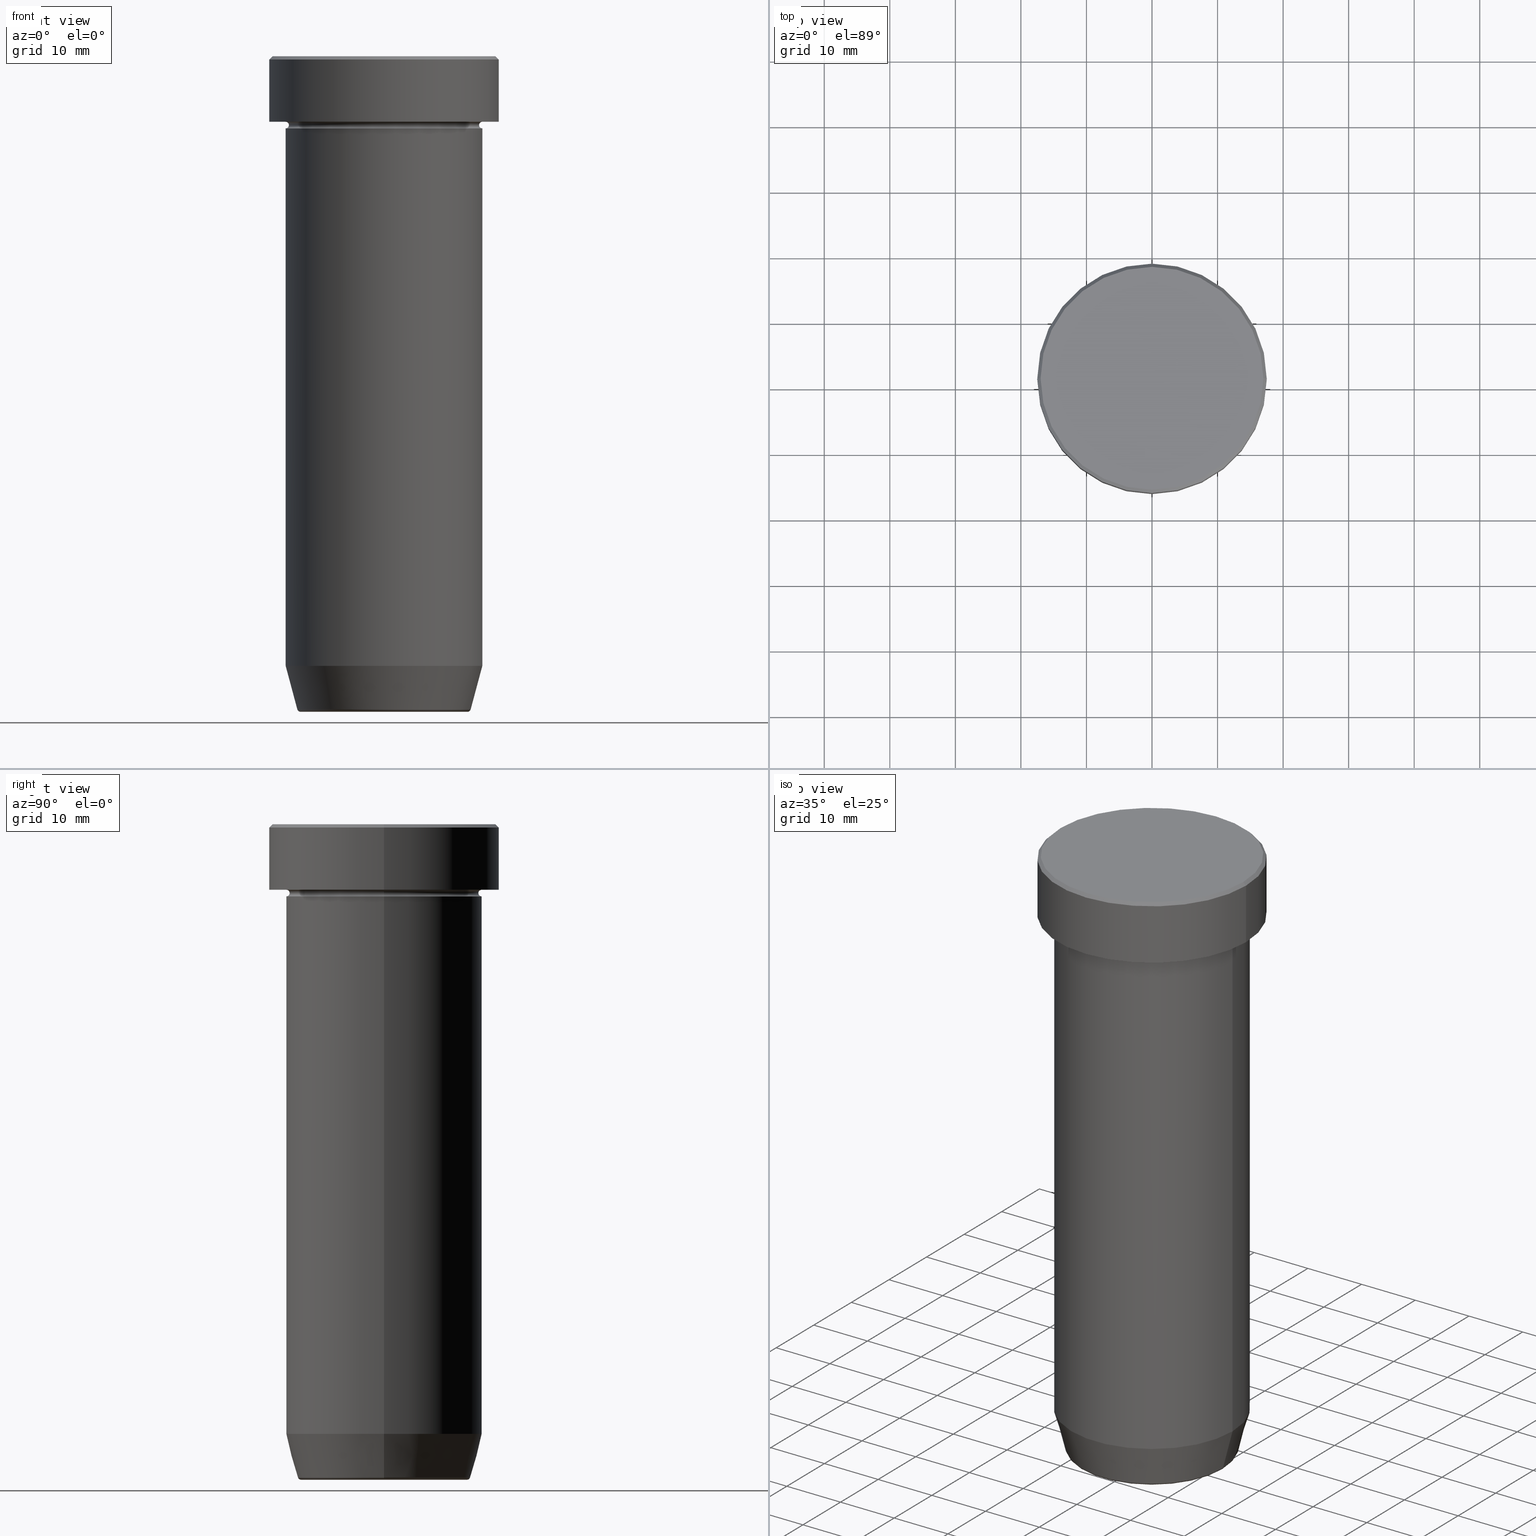
[diagram: canonical four-view strip — front | top / right | iso, engineering-drawing reading convention]
A machine part, canonical four-view strip (front | top / right | iso — engineering-drawing reading convention). The complete STEP part file that produces these views, byte-faithful:
ISO-10303-21;
HEADER;
FILE_DESCRIPTION (( 'STEP AP203' ),
    '1' );
FILE_NAME ('f896.STEP',
    '2024-01-02T17:39:29',
    ( '' ),
    ( '' ),
    'SwSTEP 2.0',
    'SolidWorks 2019',
    '' );
FILE_SCHEMA (( 'CONFIG_CONTROL_DESIGN' ));
ENDSEC;

DATA;
#1 = CIRCLE ( 'NONE', #545, 17.50000000000000000 ) ;
#2 =( GEOMETRIC_REPRESENTATION_CONTEXT ( 3 ) GLOBAL_UNCERTAINTY_ASSIGNED_CONTEXT ( ( #20 ) ) GLOBAL_UNIT_ASSIGNED_CONTEXT ( ( #550, #109, #294 ) ) REPRESENTATION_CONTEXT ( 'NONE', 'WORKASPACE' ) );
#3 = CARTESIAN_POINT ( 'NONE',  ( 17.50000000000000000, 0.000000000000000000, -0.5000000000000073275 ) ) ;
#4 = ADVANCED_FACE ( 'NONE', ( #13 ), #160, .F. ) ;
#5 = DIRECTION ( 'NONE',  ( 0.000000000000000000, 0.000000000000000000, -1.000000000000000000 ) ) ;
#6 = DIRECTION ( 'NONE',  ( -0.000000000000000000, -0.000000000000000000, 1.000000000000000000 ) ) ;
#7 = LINE ( 'NONE', #370, #23 ) ;
#8 = ORIENTED_EDGE ( 'NONE', *, *, #476, .F. ) ;
#9 = DATE_AND_TIME ( #518, #92 ) ;
#10 = AXIS2_PLACEMENT_3D ( 'NONE', #594, #33, #407 ) ;
#11 = SECURITY_CLASSIFICATION ( '', '', #529 ) ;
#12 = EDGE_CURVE ( 'NONE', #183, #129, #221, .T. ) ;
#13 = FACE_OUTER_BOUND ( 'NONE', #201, .T. ) ;
#14 = MECHANICAL_CONTEXT ( 'NONE', #289, 'mechanical' ) ;
#15 = DIRECTION ( 'NONE',  ( -0.000000000000000000, -0.000000000000000000, 1.000000000000000000 ) ) ;
#16 = CARTESIAN_POINT ( 'NONE',  ( 0.000000000000000000, 0.000000000000000000, -0.5000000000000073275 ) ) ;
#17 = EDGE_CURVE ( 'NONE', #212, #226, #401, .T. ) ;
#18 = EDGE_LOOP ( 'NONE', ( #540, #107, #8, #426 ) ) ;
#19 = PERSON_AND_ORGANIZATION ( #473, #103 ) ;
#20 = UNCERTAINTY_MEASURE_WITH_UNIT (LENGTH_MEASURE( 1.000000000000000082E-05 ), #550, 'distance_accuracy_value', 'NONE');
#21 = DIRECTION ( 'NONE',  ( -0.000000000000000000, -0.000000000000000000, 1.000000000000000000 ) ) ;
#22 = PLANE ( 'NONE',  #280 ) ;
#23 = VECTOR ( 'NONE', #371, 1000.000000000000000 ) ;
#24 = ORIENTED_EDGE ( 'NONE', *, *, #374, .F. ) ;
#25 = DIRECTION ( 'NONE',  ( -0.000000000000000000, -0.000000000000000000, 1.000000000000000000 ) ) ;
#26 = DIRECTION ( 'NONE',  ( -1.000000000000000000, 0.000000000000000000, 0.000000000000000000 ) ) ;
#27 = CARTESIAN_POINT ( 'NONE',  ( 15.00000000000000000, 0.000000000000000000, -11.00000000000000000 ) ) ;
#28 = DIRECTION ( 'NONE',  ( -1.000000000000000000, 1.224646799147349509E-16, 0.000000000000000000 ) ) ;
#29 = ORIENTED_EDGE ( 'NONE', *, *, #549, .T. ) ;
#30 = EDGE_CURVE ( 'NONE', #556, #427, #138, .T. ) ;
#31 = DIRECTION ( 'NONE',  ( -0.000000000000000000, -0.000000000000000000, 1.000000000000000000 ) ) ;
#32 = PRODUCT_DEFINITION ( 'NEZN�M�', '', #203, #567 ) ;
#33 = DIRECTION ( 'NONE',  ( -1.224646799147353207E-16, 1.000000000000000000, 0.000000000000000000 ) ) ;
#34 = ORIENTED_EDGE ( 'NONE', *, *, #563, .F. ) ;
#35 = DIRECTION ( 'NONE',  ( 0.000000000000000000, 0.000000000000000000, -1.000000000000000000 ) ) ;
#36 = DIRECTION ( 'NONE',  ( -0.000000000000000000, -0.000000000000000000, 1.000000000000000000 ) ) ;
#37 = AXIS2_PLACEMENT_3D ( 'NONE', #533, #165, #487 ) ;
#38 = DIRECTION ( 'NONE',  ( 1.000000000000000000, 0.000000000000000000, 0.000000000000000000 ) ) ;
#39 = EDGE_CURVE ( 'NONE', #466, #514, #287, .T. ) ;
#40 = APPROVAL_PERSON_ORGANIZATION ( #53, #439, #343 ) ;
#41 = DIRECTION ( 'NONE',  ( 0.000000000000000000, 0.000000000000000000, -1.000000000000000000 ) ) ;
#42 = DIRECTION ( 'NONE',  ( 0.000000000000000000, 0.000000000000000000, -1.000000000000000000 ) ) ;
#43 = CARTESIAN_POINT ( 'NONE',  ( -13.22365507213718594, 1.728200442216588189E-15, -99.62940952255127058 ) ) ;
#44 = DIRECTION ( 'NONE',  ( 0.2588190451025210725, 0.000000000000000000, 0.9659258262890680902 ) ) ;
#45 = CLOSED_SHELL ( 'NONE', ( #525, #272, #378, #4, #387, #383, #252, #305 ) ) ;
#46 = AXIS2_PLACEMENT_3D ( 'NONE', #418, #42, #422 ) ;
#47 = APPROVAL_PERSON_ORGANIZATION ( #202, #512, #213 ) ;
#48 = ORIENTED_EDGE ( 'NONE', *, *, #54, .T. ) ;
#49 = EDGE_LOOP ( 'NONE', ( #517, #571, #155, #167 ) ) ;
#50 = DIRECTION ( 'NONE',  ( 1.000000000000000000, 0.000000000000000000, 0.000000000000000000 ) ) ;
#51 = EDGE_LOOP ( 'NONE', ( #157, #561, #100, #198 ) ) ;
#52 = ORIENTED_EDGE ( 'NONE', *, *, #329, .F. ) ;
#53 = PERSON_AND_ORGANIZATION ( #473, #103 ) ;
#54 = EDGE_CURVE ( 'NONE', #556, #384, #270, .T. ) ;
#55 = ORIENTED_EDGE ( 'NONE', *, *, #497, .T. ) ;
#56 = SHAPE_DEFINITION_REPRESENTATION ( #140, #83 ) ;
#57 = EDGE_CURVE ( 'NONE', #171, #147, #67, .T. ) ;
#58 = VECTOR ( 'NONE', #491, 1000.000000000000114 ) ;
#59 = CONICAL_SURFACE ( 'NONE', #404, 13.12435565298213547, 0.2617993877991497964 ) ;
#60 = EDGE_LOOP ( 'NONE', ( #542, #354 ) ) ;
#61 = VERTEX_POINT ( 'NONE', #268 ) ;
#62 = APPROVAL_DATE_TIME ( #515, #490 ) ;
#63 = DIRECTION ( 'NONE',  ( -0.000000000000000000, -0.000000000000000000, 1.000000000000000000 ) ) ;
#64 = ADVANCED_FACE ( 'NONE', ( #353 ), #278, .F. ) ;
#65 = COORDINATED_UNIVERSAL_TIME_OFFSET ( 1, 0, .AHEAD. ) ;
#66 = DIRECTION ( 'NONE',  ( 1.000000000000000000, 0.000000000000000000, 0.000000000000000000 ) ) ;
#67 = CIRCLE ( 'NONE', #409, 0.5000000000000004441 ) ;
#68 = DIRECTION ( 'NONE',  ( -0.000000000000000000, -0.000000000000000000, 1.000000000000000000 ) ) ;
#69 = ORIENTED_EDGE ( 'NONE', *, *, #329, .T. ) ;
#70 = LINE ( 'NONE', #112, #333 ) ;
#71 = CIRCLE ( 'NONE', #413, 17.00000000000000000 ) ;
#72 = DIRECTION ( 'NONE',  ( 1.000000000000000000, 0.000000000000000000, 0.000000000000000000 ) ) ;
#73 = ORIENTED_EDGE ( 'NONE', *, *, #300, .T. ) ;
#74 = DIRECTION ( 'NONE',  ( -0.000000000000000000, -0.000000000000000000, 1.000000000000000000 ) ) ;
#75 = DIRECTION ( 'NONE',  ( -0.000000000000000000, -0.000000000000000000, 1.000000000000000000 ) ) ;
#76 = EDGE_LOOP ( 'NONE', ( #302, #435, #388, #532 ) ) ;
#77 = EDGE_CURVE ( 'NONE', #129, #183, #87, .T. ) ;
#78 = CARTESIAN_POINT ( 'NONE',  ( 0.000000000000000000, 0.000000000000000000, -99.62940952255127058 ) ) ;
#79 = AXIS2_PLACEMENT_3D ( 'NONE', #170, #31, #400 ) ;
#80 = DIRECTION ( 'NONE',  ( 1.000000000000000000, 0.000000000000000000, 0.000000000000000000 ) ) ;
#81 = CIRCLE ( 'NONE', #495, 15.00000000000000000 ) ;
#82 = AXIS2_PLACEMENT_3D ( 'NONE', #499, #276, #396 ) ;
#83 = ADVANCED_BREP_SHAPE_REPRESENTATION ( 'f896', ( #538, #144, #513 ), #2 ) ;
#84 = EDGE_CURVE ( 'NONE', #360, #226, #159, .T. ) ;
#85 = CARTESIAN_POINT ( 'NONE',  ( 0.000000000000000000, 0.000000000000000000, -99.50000000000000000 ) ) ;
#86 = FACE_OUTER_BOUND ( 'NONE', #261, .T. ) ;
#87 = CIRCLE ( 'NONE', #416, 15.00000000000000000 ) ;
#88 = CARTESIAN_POINT ( 'NONE',  ( 0.000000000000000000, 17.50000000000000000, -9.999999999999998224 ) ) ;
#89 = PRODUCT ( 'f896', 'f896', '', ( #14 ) ) ;
#90 = CARTESIAN_POINT ( 'NONE',  ( 15.00000000000000000, 1.836970198721029589E-15, -9.999999999999998224 ) ) ;
#91 = TOROIDAL_SURFACE ( 'NONE', #350, 15.00000000000000000, 0.5000000000000000000 ) ;
#92 = LOCAL_TIME ( 18, 39, 29.00000000000000000, #65 ) ;
#93 = DIRECTION ( 'NONE',  ( -0.000000000000000000, -0.000000000000000000, 1.000000000000000000 ) ) ;
#94 = DIRECTION ( 'NONE',  ( -0.000000000000000000, -0.000000000000000000, 1.000000000000000000 ) ) ;
#95 = EDGE_CURVE ( 'NONE', #61, #298, #1, .T. ) ;
#96 = DIRECTION ( 'NONE',  ( 0.000000000000000000, 0.000000000000000000, -1.000000000000000000 ) ) ;
#97 = CC_DESIGN_DATE_AND_TIME_ASSIGNMENT ( #9, #106, ( #11 ) ) ;
#98 = DIRECTION ( 'NONE',  ( 1.000000000000000000, 0.000000000000000000, 0.000000000000000000 ) ) ;
#99 = VERTEX_POINT ( 'NONE', #568 ) ;
#100 = ORIENTED_EDGE ( 'NONE', *, *, #465, .T. ) ;
#101 = DIRECTION ( 'NONE',  ( 1.224646799147353207E-16, 1.000000000000000000, 0.000000000000000000 ) ) ;
#102 = CONICAL_SURFACE ( 'NONE', #163, 17.00000000000000000, 0.7853981633974415066 ) ;
#103 = ORGANIZATION ( 'NEUR�EN�', 'NEUR�EN�', '' ) ;
#104 = ORIENTED_EDGE ( 'NONE', *, *, #17, .T. ) ;
#105 = ORIENTED_EDGE ( 'NONE', *, *, #485, .T. ) ;
#106 = DATE_TIME_ROLE ( 'classification_date' ) ;
#107 = ORIENTED_EDGE ( 'NONE', *, *, #180, .T. ) ;
#108 = AXIS2_PLACEMENT_3D ( 'NONE', #493, #527, #80 ) ;
#109 =( NAMED_UNIT ( * ) PLANE_ANGLE_UNIT ( ) SI_UNIT ( $, .RADIAN. ) );
#110 = CIRCLE ( 'NONE', #450, 15.00000000000000000 ) ;
#111 = CIRCLE ( 'NONE', #82, 0.5000000000000004441 ) ;
#112 = CARTESIAN_POINT ( 'NONE',  ( -15.00000000000000000, 1.836970198721029589E-15, 0.000000000000000000 ) ) ;
#113 = DIRECTION ( 'NONE',  ( 0.000000000000000000, 0.000000000000000000, -1.000000000000000000 ) ) ;
#114 = PERSON_AND_ORGANIZATION ( #473, #103 ) ;
#115 = EDGE_CURVE ( 'NONE', #226, #212, #440, .T. ) ;
#116 = CARTESIAN_POINT ( 'NONE',  ( 15.00000000000000000, 0.000000000000000000, -93.00000000000000000 ) ) ;
#117 = ORIENTED_EDGE ( 'NONE', *, *, #197, .F. ) ;
#118 = PERSON_AND_ORGANIZATION_ROLE ( 'design_supplier' ) ;
#119 = CARTESIAN_POINT ( 'NONE',  ( 0.000000000000000000, 0.000000000000000000, -0.5000000000000073275 ) ) ;
#120 = AXIS2_PLACEMENT_3D ( 'NONE', #78, #130, #26 ) ;
#121 = CARTESIAN_POINT ( 'NONE',  ( -14.49999999999999822, 1.806354028742345802E-15, -10.49999999999999822 ) ) ;
#122 = VERTEX_POINT ( 'NONE', #116 ) ;
#123 = CARTESIAN_POINT ( 'NONE',  ( 0.000000000000000000, 0.000000000000000000, 0.000000000000000000 ) ) ;
#124 = DIRECTION ( 'NONE',  ( 0.000000000000000000, -1.000000000000000000, 0.000000000000000000 ) ) ;
#125 = CC_DESIGN_APPROVAL ( #439, ( #203 ) ) ;
#126 = ADVANCED_FACE ( 'NONE', ( #306 ), #582, .T. ) ;
#127 = EDGE_LOOP ( 'NONE', ( #269, #55, #227, #584 ) ) ;
#128 = LINE ( 'NONE', #317, #58 ) ;
#129 = VERTEX_POINT ( 'NONE', #357 ) ;
#130 = DIRECTION ( 'NONE',  ( -0.000000000000000000, -0.000000000000000000, 1.000000000000000000 ) ) ;
#131 = ORIENTED_EDGE ( 'NONE', *, *, #39, .T. ) ;
#132 = TOROIDAL_SURFACE ( 'NONE', #342, 12.74069215899265473, 0.5000000000000000000 ) ;
#133 = AXIS2_PLACEMENT_3D ( 'NONE', #247, #288, #459 ) ;
#134 = CYLINDRICAL_SURFACE ( 'NONE', #431, 15.00000000000000000 ) ;
#135 = EDGE_CURVE ( 'NONE', #447, #61, #178, .T. ) ;
#136 = FACE_BOUND ( 'NONE', #60, .T. ) ;
#137 = DIRECTION ( 'NONE',  ( 1.000000000000000000, 0.000000000000000000, 0.000000000000000000 ) ) ;
#138 = CIRCLE ( 'NONE', #108, 15.00000000000000000 ) ;
#139 = CARTESIAN_POINT ( 'NONE',  ( -15.00000000000000000, 1.836970198721029589E-15, -36.00000000000000000 ) ) ;
#140 = PRODUCT_DEFINITION_SHAPE ( 'NONE', 'NONE',  #32 ) ;
#141 = CARTESIAN_POINT ( 'NONE',  ( 0.000000000000000000, 0.000000000000000000, -11.00000000000000000 ) ) ;
#142 = CIRCLE ( 'NONE', #10, 0.5000000000000004441 ) ;
#143 = TOROIDAL_SURFACE ( 'NONE', #204, 15.00000000000000000, 0.5000000000000000000 ) ;
#144 = MANIFOLD_SOLID_BREP ( 'Zaoblit4', #45 ) ;
#145 = DIRECTION ( 'NONE',  ( -0.000000000000000000, -0.000000000000000000, 1.000000000000000000 ) ) ;
#146 = CARTESIAN_POINT ( 'NONE',  ( 0.000000000000000000, 0.000000000000000000, -10.49999999999999822 ) ) ;
#147 = VERTEX_POINT ( 'NONE', #438 ) ;
#148 = DIRECTION ( 'NONE',  ( 1.000000000000000000, 0.000000000000000000, 0.000000000000000000 ) ) ;
#149 = ORIENTED_EDGE ( 'NONE', *, *, #310, .F. ) ;
#150 = ORIENTED_EDGE ( 'NONE', *, *, #284, .F. ) ;
#151 = DATE_TIME_ROLE ( 'creation_date' ) ;
#152 = CIRCLE ( 'NONE', #457, 0.5000000000000004441 ) ;
#153 = CIRCLE ( 'NONE', #592, 14.49999999999999822 ) ;
#154 = CC_DESIGN_PERSON_AND_ORGANIZATION_ASSIGNMENT ( #558, #475, ( #89 ) ) ;
#155 = ORIENTED_EDGE ( 'NONE', *, *, #77, .F. ) ;
#156 = PERSON_AND_ORGANIZATION ( #473, #103 ) ;
#157 = ORIENTED_EDGE ( 'NONE', *, *, #497, .F. ) ;
#158 = DIRECTION ( 'NONE',  ( 0.000000000000000000, 0.000000000000000000, 1.000000000000000000 ) ) ;
#159 = CIRCLE ( 'NONE', #492, 0.5000000000000004441 ) ;
#160 = PLANE ( 'NONE',  #501 ) ;
#161 = COORDINATED_UNIVERSAL_TIME_OFFSET ( 1, 0, .AHEAD. ) ;
#162 = ADVANCED_FACE ( 'NONE', ( #484 ), #22, .T. ) ;
#163 = AXIS2_PLACEMENT_3D ( 'NONE', #281, #41, #189 ) ;
#164 = AXIS2_PLACEMENT_3D ( 'NONE', #574, #433, #66 ) ;
#165 = DIRECTION ( 'NONE',  ( 0.000000000000000000, 0.000000000000000000, -1.000000000000000000 ) ) ;
#166 = DIRECTION ( 'NONE',  ( 0.000000000000000000, 0.000000000000000000, -1.000000000000000000 ) ) ;
#167 = ORIENTED_EDGE ( 'NONE', *, *, #421, .F. ) ;
#168 = CALENDAR_DATE ( 2024, 2, 1 ) ;
#169 = CARTESIAN_POINT ( 'NONE',  ( -15.00000000000000000, 1.836970198721029589E-15, -93.00000000000000000 ) ) ;
#170 = CARTESIAN_POINT ( 'NONE',  ( 0.000000000000000000, 0.000000000000000000, -9.999999999999998224 ) ) ;
#171 = VERTEX_POINT ( 'NONE', #121 ) ;
#172 = CARTESIAN_POINT ( 'NONE',  ( -12.74069215899265473, 1.589857736427680246E-15, -100.0000000000000000 ) ) ;
#173 = EDGE_CURVE ( 'NONE', #99, #447, #385, .T. ) ;
#174 = CARTESIAN_POINT ( 'NONE',  ( 0.000000000000000000, 0.000000000000000000, -10.49999999999999822 ) ) ;
#175 = ORIENTED_EDGE ( 'NONE', *, *, #448, .T. ) ;
#176 = VECTOR ( 'NONE', #94, 1000.000000000000000 ) ;
#177 = EDGE_CURVE ( 'NONE', #360, #389, #332, .T. ) ;
#178 = LINE ( 'NONE', #179, #504 ) ;
#179 = CARTESIAN_POINT ( 'NONE',  ( -17.50000000000000000, 2.143131898507868248E-15, 0.000000000000000000 ) ) ;
#180 = EDGE_CURVE ( 'NONE', #212, #441, #128, .T. ) ;
#181 = CARTESIAN_POINT ( 'NONE',  ( -17.00000000000000000, 0.000000000000000000, 0.000000000000000000 ) ) ;
#182 = VECTOR ( 'NONE', #260, 1000.000000000000000 ) ;
#183 = VERTEX_POINT ( 'NONE', #90 ) ;
#184 = CARTESIAN_POINT ( 'NONE',  ( 0.000000000000000000, 0.000000000000000000, -10.49999999999999822 ) ) ;
#185 = AXIS2_PLACEMENT_3D ( 'NONE', #119, #5, #50 ) ;
#186 = DIRECTION ( 'NONE',  ( 1.000000000000000000, 0.000000000000000000, 0.000000000000000000 ) ) ;
#187 = CARTESIAN_POINT ( 'NONE',  ( 15.00000000000000000, 0.000000000000000000, -10.49999999999999822 ) ) ;
#188 = DIRECTION ( 'NONE',  ( -0.000000000000000000, -0.000000000000000000, 1.000000000000000000 ) ) ;
#189 = DIRECTION ( 'NONE',  ( -1.000000000000000000, 0.000000000000000000, 0.000000000000000000 ) ) ;
#190 = EDGE_CURVE ( 'NONE', #271, #183, #142, .T. ) ;
#191 = CARTESIAN_POINT ( 'NONE',  ( 0.000000000000000000, 0.000000000000000000, -36.00000000000000000 ) ) ;
#192 = DIRECTION ( 'NONE',  ( -0.7071067811865426878, 0.000000000000000000, -0.7071067811865524577 ) ) ;
#193 = TOROIDAL_SURFACE ( 'NONE', #46, 15.00000000000000000, 0.5000000000000000000 ) ;
#194 = DIRECTION ( 'NONE',  ( -0.000000000000000000, -0.000000000000000000, 1.000000000000000000 ) ) ;
#195 = ORIENTED_EDGE ( 'NONE', *, *, #84, .T. ) ;
#196 = CARTESIAN_POINT ( 'NONE',  ( 0.000000000000000000, 0.000000000000000000, -99.50000000000000000 ) ) ;
#197 = EDGE_CURVE ( 'NONE', #271, #384, #152, .T. ) ;
#198 = ORIENTED_EDGE ( 'NONE', *, *, #39, .F. ) ;
#199 = CARTESIAN_POINT ( 'NONE',  ( 0.000000000000000000, 0.000000000000000000, 0.000000000000000000 ) ) ;
#200 = AXIS2_PLACEMENT_3D ( 'NONE', #320, #75, #274 ) ;
#201 = EDGE_LOOP ( 'NONE', ( #489, #131 ) ) ;
#202 = PERSON_AND_ORGANIZATION ( #473, #103 ) ;
#203 = PRODUCT_DEFINITION_FORMATION_WITH_SPECIFIED_SOURCE ( 'LIBOVOLN�', '', #89, .NOT_KNOWN. ) ;
#204 = AXIS2_PLACEMENT_3D ( 'NONE', #184, #366, #546 ) ;
#205 = ORIENTED_EDGE ( 'NONE', *, *, #344, .T. ) ;
#206 = DIRECTION ( 'NONE',  ( -0.000000000000000000, -0.000000000000000000, 1.000000000000000000 ) ) ;
#207 = ADVANCED_FACE ( 'NONE', ( #86 ), #285, .T. ) ;
#208 = ORIENTED_EDGE ( 'NONE', *, *, #300, .F. ) ;
#209 = LINE ( 'NONE', #217, #551 ) ;
#210 = DIRECTION ( 'NONE',  ( -0.000000000000000000, -0.000000000000000000, 1.000000000000000000 ) ) ;
#211 = CC_DESIGN_DATE_AND_TIME_ASSIGNMENT ( #520, #151, ( #32 ) ) ;
#212 = VERTEX_POINT ( 'NONE', #43 ) ;
#213 = APPROVAL_ROLE ( '' ) ;
#214 = FACE_OUTER_BOUND ( 'NONE', #341, .T. ) ;
#215 = DIRECTION ( 'NONE',  ( 1.000000000000000000, 0.000000000000000000, 0.000000000000000000 ) ) ;
#216 = EDGE_LOOP ( 'NONE', ( #403, #469 ) ) ;
#217 = CARTESIAN_POINT ( 'NONE',  ( 17.50000000000000000, 0.000000000000000000, 0.000000000000000000 ) ) ;
#218 = CARTESIAN_POINT ( 'NONE',  ( 0.000000000000000000, 15.00000000000000000, -36.00000000000000000 ) ) ;
#219 = ORIENTED_EDGE ( 'NONE', *, *, #593, .F. ) ;
#220 = CC_DESIGN_PERSON_AND_ORGANIZATION_ASSIGNMENT ( #19, #255, ( #32 ) ) ;
#221 = CIRCLE ( 'NONE', #79, 15.00000000000000000 ) ;
#222 = DIRECTION ( 'NONE',  ( 1.000000000000000000, 0.000000000000000000, 0.000000000000000000 ) ) ;
#223 = AXIS2_PLACEMENT_3D ( 'NONE', #218, #166, #480 ) ;
#224 = CIRCLE ( 'NONE', #233, 17.50000000000000000 ) ;
#225 = DIRECTION ( 'NONE',  ( -0.000000000000000000, -0.000000000000000000, 1.000000000000000000 ) ) ;
#226 = VERTEX_POINT ( 'NONE', #237 ) ;
#227 = ORIENTED_EDGE ( 'NONE', *, *, #573, .F. ) ;
#228 = CYLINDRICAL_SURFACE ( 'NONE', #164, 15.00000000000000000 ) ;
#229 = LINE ( 'NONE', #181, #522 ) ;
#230 = CARTESIAN_POINT ( 'NONE',  ( -15.00000000000000000, 1.836970198721029589E-15, -36.00000000000000000 ) ) ;
#231 = FACE_OUTER_BOUND ( 'NONE', #536, .T. ) ;
#232 = AXIS2_PLACEMENT_3D ( 'NONE', #405, #392, #579 ) ;
#233 = AXIS2_PLACEMENT_3D ( 'NONE', #375, #468, #599 ) ;
#234 = CARTESIAN_POINT ( 'NONE',  ( -15.00000000000000000, 1.836970198721029589E-15, 0.000000000000000000 ) ) ;
#235 = PLANE ( 'NONE',  #367 ) ;
#236 = DIRECTION ( 'NONE',  ( -0.000000000000000000, -0.000000000000000000, 1.000000000000000000 ) ) ;
#237 = CARTESIAN_POINT ( 'NONE',  ( 13.22365507213718594, 0.000000000000000000, -99.62940952255127058 ) ) ;
#238 = FACE_OUTER_BOUND ( 'NONE', #295, .T. ) ;
#239 = CYLINDRICAL_SURFACE ( 'NONE', #511, 17.50000000000000000 ) ;
#240 = EDGE_CURVE ( 'NONE', #441, #122, #110, .T. ) ;
#241 = VECTOR ( 'NONE', #93, 1000.000000000000000 ) ;
#242 = CARTESIAN_POINT ( 'NONE',  ( -17.00000000000000000, 0.000000000000000000, 0.000000000000000000 ) ) ;
#243 = DIRECTION ( 'NONE',  ( -0.000000000000000000, -0.000000000000000000, 1.000000000000000000 ) ) ;
#244 = ORIENTED_EDGE ( 'NONE', *, *, #319, .F. ) ;
#245 = EDGE_CURVE ( 'NONE', #586, #61, #229, .T. ) ;
#246 = ORIENTED_EDGE ( 'NONE', *, *, #485, .F. ) ;
#247 = CARTESIAN_POINT ( 'NONE',  ( 0.000000000000000000, 0.000000000000000000, -93.00000000000000000 ) ) ;
#248 = ORIENTED_EDGE ( 'NONE', *, *, #17, .F. ) ;
#249 = ORIENTED_EDGE ( 'NONE', *, *, #521, .T. ) ;
#250 = AXIS2_PLACEMENT_3D ( 'NONE', #575, #311, #72 ) ;
#251 = AXIS2_PLACEMENT_3D ( 'NONE', #588, #21, #328 ) ;
#252 = ADVANCED_FACE ( 'NONE', ( #365 ), #235, .F. ) ;
#253 = ORIENTED_EDGE ( 'NONE', *, *, #135, .F. ) ;
#254 = ORIENTED_EDGE ( 'NONE', *, *, #30, .F. ) ;
#255 = PERSON_AND_ORGANIZATION_ROLE ( 'creator' ) ;
#256 = DIRECTION ( 'NONE',  ( 1.000000000000000000, 0.000000000000000000, 0.000000000000000000 ) ) ;
#257 = ORIENTED_EDGE ( 'NONE', *, *, #135, .T. ) ;
#258 = PERSON_AND_ORGANIZATION_ROLE ( 'classification_officer' ) ;
#259 = DIRECTION ( 'NONE',  ( 1.000000000000000000, 0.000000000000000000, 0.000000000000000000 ) ) ;
#260 = DIRECTION ( 'NONE',  ( -0.000000000000000000, -0.000000000000000000, 1.000000000000000000 ) ) ;
#261 = EDGE_LOOP ( 'NONE', ( #52, #29, #48, #316 ) ) ;
#262 = DATE_AND_TIME ( #308, #326 ) ;
#263 = CIRCLE ( 'NONE', #323, 17.00000000000000000 ) ;
#264 = APPROVAL_PERSON_ORGANIZATION ( #394, #490, #572 ) ;
#265 = DIRECTION ( 'NONE',  ( -0.000000000000000000, -0.000000000000000000, 1.000000000000000000 ) ) ;
#266 = DIRECTION ( 'NONE',  ( 0.000000000000000000, 0.000000000000000000, -1.000000000000000000 ) ) ;
#267 = ORIENTED_EDGE ( 'NONE', *, *, #57, .F. ) ;
#268 = CARTESIAN_POINT ( 'NONE',  ( -17.50000000000000000, 2.143131898507868248E-15, -0.5000000000000073275 ) ) ;
#269 = ORIENTED_EDGE ( 'NONE', *, *, #476, .T. ) ;
#270 = LINE ( 'NONE', #578, #182 ) ;
#271 = VERTEX_POINT ( 'NONE', #544 ) ;
#272 = ADVANCED_FACE ( 'NONE', ( #454 ), #463, .T. ) ;
#273 = AXIS2_PLACEMENT_3D ( 'NONE', #595, #101, #425 ) ;
#274 = DIRECTION ( 'NONE',  ( 1.000000000000000000, 0.000000000000000000, 0.000000000000000000 ) ) ;
#275 = ADVANCED_FACE ( 'NONE', ( #231 ), #91, .F. ) ;
#276 = DIRECTION ( 'NONE',  ( -0.000000000000000000, -1.000000000000000000, -0.000000000000000000 ) ) ;
#277 = DIRECTION ( 'NONE',  ( 0.000000000000000000, -0.000000000000000000, 1.000000000000000000 ) ) ;
#278 = TOROIDAL_SURFACE ( 'NONE', #531, 15.00000000000000000, 0.5000000000000000000 ) ;
#279 = ADVANCED_FACE ( 'NONE', ( #589 ), #102, .T. ) ;
#280 = AXIS2_PLACEMENT_3D ( 'NONE', #363, #541, #397 ) ;
#281 = CARTESIAN_POINT ( 'NONE',  ( 0.000000000000000000, 0.000000000000000000, 0.000000000000000000 ) ) ;
#282 = CIRCLE ( 'NONE', #523, 15.00000000000000000 ) ;
#283 = DIRECTION ( 'NONE',  ( 1.000000000000000000, 0.000000000000000000, 0.000000000000000000 ) ) ;
#284 = EDGE_CURVE ( 'NONE', #384, #147, #81, .T. ) ;
#285 = CYLINDRICAL_SURFACE ( 'NONE', #290, 15.00000000000000000 ) ;
#286 = LINE ( 'NONE', #234, #176 ) ;
#287 = CIRCLE ( 'NONE', #200, 15.00000000000000000 ) ;
#288 = DIRECTION ( 'NONE',  ( -0.000000000000000000, -0.000000000000000000, 1.000000000000000000 ) ) ;
#289 = APPLICATION_CONTEXT ( 'configuration controlled 3d designs of mechanical parts and assemblies' ) ;
#290 = AXIS2_PLACEMENT_3D ( 'NONE', #369, #145, #502 ) ;
#291 = AXIS2_PLACEMENT_3D ( 'NONE', #199, #336, #506 ) ;
#292 = FACE_OUTER_BOUND ( 'NONE', #373, .T. ) ;
#293 = EDGE_LOOP ( 'NONE', ( #253, #105, #477, #175 ) ) ;
#294 =( NAMED_UNIT ( * ) SI_UNIT ( $, .STERADIAN. ) SOLID_ANGLE_UNIT ( ) );
#295 = EDGE_LOOP ( 'NONE', ( #244, #379, #307, #576 ) ) ;
#296 = APPROVAL_DATE_TIME ( #262, #512 ) ;
#297 = ADVANCED_FACE ( 'NONE', ( #347 ), #239, .T. ) ;
#298 = VERTEX_POINT ( 'NONE', #3 ) ;
#299 = CIRCLE ( 'NONE', #386, 14.49999999999999822 ) ;
#300 = EDGE_CURVE ( 'NONE', #434, #586, #263, .T. ) ;
#301 = CYLINDRICAL_SURFACE ( 'NONE', #251, 17.50000000000000000 ) ;
#302 = ORIENTED_EDGE ( 'NONE', *, *, #190, .F. ) ;
#303 = PERSON_AND_ORGANIZATION_ROLE ( 'creator' ) ;
#304 = DIRECTION ( 'NONE',  ( 1.000000000000000000, 0.000000000000000000, 0.000000000000000000 ) ) ;
#305 = ADVANCED_FACE ( 'NONE', ( #423 ), #132, .T. ) ;
#306 = FACE_OUTER_BOUND ( 'NONE', #381, .T. ) ;
#307 = ORIENTED_EDGE ( 'NONE', *, *, #115, .F. ) ;
#308 = CALENDAR_DATE ( 2024, 2, 1 ) ;
#309 = FACE_OUTER_BOUND ( 'NONE', #49, .T. ) ;
#310 = EDGE_CURVE ( 'NONE', #586, #434, #71, .T. ) ;
#311 = DIRECTION ( 'NONE',  ( -0.000000000000000000, -0.000000000000000000, 1.000000000000000000 ) ) ;
#312 = ORIENTED_EDGE ( 'NONE', *, *, #593, .T. ) ;
#313 = LOCAL_TIME ( 18, 39, 29.00000000000000000, #472 ) ;
#314 = CYLINDRICAL_SURFACE ( 'NONE', #372, 15.00000000000000000 ) ;
#315 = DIRECTION ( 'NONE',  ( -1.000000000000000000, 0.000000000000000000, -0.000000000000000000 ) ) ;
#316 = ORIENTED_EDGE ( 'NONE', *, *, #344, .F. ) ;
#317 = CARTESIAN_POINT ( 'NONE',  ( -13.12435565298213547, 1.607270014129604385E-15, -100.0000000000000000 ) ) ;
#318 = ORIENTED_EDGE ( 'NONE', *, *, #173, .T. ) ;
#319 = EDGE_CURVE ( 'NONE', #389, #360, #559, .T. ) ;
#320 = CARTESIAN_POINT ( 'NONE',  ( 0.000000000000000000, 0.000000000000000000, -36.00000000000000000 ) ) ;
#321 = EDGE_LOOP ( 'NONE', ( #348, #69, #150, #528 ) ) ;
#322 = CC_DESIGN_PERSON_AND_ORGANIZATION_ASSIGNMENT ( #156, #118, ( #203 ) ) ;
#323 = AXIS2_PLACEMENT_3D ( 'NONE', #553, #243, #98 ) ;
#324 = VECTOR ( 'NONE', #44, 1000.000000000000114 ) ;
#325 = DIRECTION ( 'NONE',  ( -0.000000000000000000, -0.000000000000000000, 1.000000000000000000 ) ) ;
#326 = LOCAL_TIME ( 18, 39, 29.00000000000000000, #346 ) ;
#327 = APPLICATION_CONTEXT ( 'configuration controlled 3d designs of mechanical parts and assemblies' ) ;
#328 = DIRECTION ( 'NONE',  ( 1.000000000000000000, 0.000000000000000000, 0.000000000000000000 ) ) ;
#329 = EDGE_CURVE ( 'NONE', #427, #147, #70, .T. ) ;
#330 = FACE_OUTER_BOUND ( 'NONE', #364, .T. ) ;
#331 = CARTESIAN_POINT ( 'NONE',  ( 0.000000000000000000, 0.000000000000000000, -100.0000000000000000 ) ) ;
#332 = CIRCLE ( 'NONE', #393, 12.74069215899265473 ) ;
#333 = VECTOR ( 'NONE', #265, 1000.000000000000000 ) ;
#334 = CC_DESIGN_SECURITY_CLASSIFICATION ( #11, ( #203 ) ) ;
#335 = FACE_OUTER_BOUND ( 'NONE', #76, .T. ) ;
#336 = DIRECTION ( 'NONE',  ( 0.000000000000000000, 0.000000000000000000, -1.000000000000000000 ) ) ;
#337 = DIRECTION ( 'NONE',  ( 1.000000000000000000, 0.000000000000000000, 0.000000000000000000 ) ) ;
#338 = EDGE_LOOP ( 'NONE', ( #318, #257, #554, #24 ) ) ;
#339 = CARTESIAN_POINT ( 'NONE',  ( 0.000000000000000000, 0.000000000000000000, -36.00000000000000000 ) ) ;
#340 = ADVANCED_FACE ( 'NONE', ( #479 ), #314, .T. ) ;
#341 = EDGE_LOOP ( 'NONE', ( #581, #104, #249, #376 ) ) ;
#342 = AXIS2_PLACEMENT_3D ( 'NONE', #85, #391, #186 ) ;
#343 = APPROVAL_ROLE ( '' ) ;
#344 = EDGE_CURVE ( 'NONE', #147, #384, #580, .T. ) ;
#345 = ORIENTED_EDGE ( 'NONE', *, *, #197, .T. ) ;
#346 = COORDINATED_UNIVERSAL_TIME_OFFSET ( 1, 0, .AHEAD. ) ;
#347 = FACE_OUTER_BOUND ( 'NONE', #338, .T. ) ;
#348 = ORIENTED_EDGE ( 'NONE', *, *, #30, .T. ) ;
#349 = CARTESIAN_POINT ( 'NONE',  ( 0.000000000000000000, 0.000000000000000000, -36.00000000000000000 ) ) ;
#350 = AXIS2_PLACEMENT_3D ( 'NONE', #458, #410, #597 ) ;
#351 = DATE_AND_TIME ( #524, #535 ) ;
#352 = DIRECTION ( 'NONE',  ( 1.000000000000000000, 0.000000000000000000, 0.000000000000000000 ) ) ;
#353 = FACE_OUTER_BOUND ( 'NONE', #467, .T. ) ;
#354 = ORIENTED_EDGE ( 'NONE', *, *, #12, .T. ) ;
#355 = APPLICATION_PROTOCOL_DEFINITION ( 'international standard', 'config_control_design', 1994, #327 ) ;
#356 = CARTESIAN_POINT ( 'NONE',  ( -17.50000000000000000, 2.143131898507868248E-15, -9.999999999999998224 ) ) ;
#357 = CARTESIAN_POINT ( 'NONE',  ( -15.00000000000000000, 0.000000000000000000, -9.999999999999998224 ) ) ;
#358 = ORIENTED_EDGE ( 'NONE', *, *, #177, .F. ) ;
#359 = DIRECTION ( 'NONE',  ( -1.000000000000000000, 0.000000000000000000, 0.000000000000000000 ) ) ;
#360 = VERTEX_POINT ( 'NONE', #591 ) ;
#361 = LOCAL_TIME ( 18, 39, 29.00000000000000000, #428 ) ;
#362 = CARTESIAN_POINT ( 'NONE',  ( 0.000000000000000000, 0.000000000000000000, -100.0000000000000000 ) ) ;
#363 = CARTESIAN_POINT ( 'NONE',  ( 0.000000000000000000, 0.000000000000000000, 0.000000000000000000 ) ) ;
#364 = EDGE_LOOP ( 'NONE', ( #453, #246 ) ) ;
#365 = FACE_OUTER_BOUND ( 'NONE', #216, .T. ) ;
#366 = DIRECTION ( 'NONE',  ( 0.000000000000000000, 0.000000000000000000, -1.000000000000000000 ) ) ;
#367 = AXIS2_PLACEMENT_3D ( 'NONE', #548, #277, #137 ) ;
#368 = CARTESIAN_POINT ( 'NONE',  ( 0.000000000000000000, 0.000000000000000000, -11.00000000000000000 ) ) ;
#369 = CARTESIAN_POINT ( 'NONE',  ( 0.000000000000000000, 0.000000000000000000, 0.000000000000000000 ) ) ;
#370 = CARTESIAN_POINT ( 'NONE',  ( 17.00000000000000000, 2.081899558550500280E-15, 0.000000000000000000 ) ) ;
#371 = DIRECTION ( 'NONE',  ( 0.7071067811865426878, 8.659560562354874926E-17, -0.7071067811865524577 ) ) ;
#372 = AXIS2_PLACEMENT_3D ( 'NONE', #445, #15, #304 ) ;
#373 = EDGE_LOOP ( 'NONE', ( #219, #149, #424, #557 ) ) ;
#374 = EDGE_CURVE ( 'NONE', #99, #298, #209, .T. ) ;
#375 = CARTESIAN_POINT ( 'NONE',  ( 0.000000000000000000, 0.000000000000000000, -9.999999999999998224 ) ) ;
#376 = ORIENTED_EDGE ( 'NONE', *, *, #240, .F. ) ;
#377 = LINE ( 'NONE', #547, #324 ) ;
#378 = ADVANCED_FACE ( 'NONE', ( #455 ), #134, .T. ) ;
#379 = ORIENTED_EDGE ( 'NONE', *, *, #583, .T. ) ;
#380 = CLOSED_SHELL ( 'NONE', ( #279, #408, #64, #340, #297, #126, #162, #412, #596, #207, #275, #543, #460 ) ) ;
#381 = EDGE_LOOP ( 'NONE', ( #254, #471 ) ) ;
#382 = DIRECTION ( 'NONE',  ( 1.000000000000000000, 0.000000000000000000, 0.000000000000000000 ) ) ;
#383 = ADVANCED_FACE ( 'NONE', ( #214 ), #59, .T. ) ;
#384 = VERTEX_POINT ( 'NONE', #27 ) ;
#385 = CIRCLE ( 'NONE', #250, 17.50000000000000000 ) ;
#386 = AXIS2_PLACEMENT_3D ( 'NONE', #146, #236, #508 ) ;
#387 = ADVANCED_FACE ( 'NONE', ( #577 ), #228, .T. ) ;
#388 = ORIENTED_EDGE ( 'NONE', *, *, #421, .T. ) ;
#389 = VERTEX_POINT ( 'NONE', #172 ) ;
#390 = APPLICATION_PROTOCOL_DEFINITION ( 'international standard', 'config_control_design', 1994, #289 ) ;
#391 = DIRECTION ( 'NONE',  ( -0.000000000000000000, -0.000000000000000000, 1.000000000000000000 ) ) ;
#392 = DIRECTION ( 'NONE',  ( -0.000000000000000000, -0.000000000000000000, 1.000000000000000000 ) ) ;
#393 = AXIS2_PLACEMENT_3D ( 'NONE', #362, #266, #539 ) ;
#394 = PERSON_AND_ORGANIZATION ( #473, #103 ) ;
#395 = CIRCLE ( 'NONE', #273, 0.5000000000000004441 ) ;
#396 = DIRECTION ( 'NONE',  ( 0.000000000000000000, 0.000000000000000000, -1.000000000000000000 ) ) ;
#397 = DIRECTION ( 'NONE',  ( 1.000000000000000000, 0.000000000000000000, 0.000000000000000000 ) ) ;
#398 = EDGE_LOOP ( 'NONE', ( #564, #73 ) ) ;
#399 = DIRECTION ( 'NONE',  ( -0.000000000000000000, -0.000000000000000000, 1.000000000000000000 ) ) ;
#400 = DIRECTION ( 'NONE',  ( -1.000000000000000000, 0.000000000000000000, 0.000000000000000000 ) ) ;
#401 = CIRCLE ( 'NONE', #120, 13.22365507213718594 ) ;
#402 = DIRECTION ( 'NONE',  ( 0.000000000000000000, 0.000000000000000000, -1.000000000000000000 ) ) ;
#403 = ORIENTED_EDGE ( 'NONE', *, *, #177, .T. ) ;
#404 = AXIS2_PLACEMENT_3D ( 'NONE', #526, #74, #352 ) ;
#405 = CARTESIAN_POINT ( 'NONE',  ( 0.000000000000000000, 0.000000000000000000, -99.62940952255127058 ) ) ;
#406 = ORIENTED_EDGE ( 'NONE', *, *, #284, .T. ) ;
#407 = DIRECTION ( 'NONE',  ( -1.000000000000000000, -1.224646799147349509E-16, 0.000000000000000000 ) ) ;
#408 = ADVANCED_FACE ( 'NONE', ( #309 ), #143, .F. ) ;
#409 = AXIS2_PLACEMENT_3D ( 'NONE', #530, #444, #28 ) ;
#410 = DIRECTION ( 'NONE',  ( -0.000000000000000000, -0.000000000000000000, 1.000000000000000000 ) ) ;
#411 = CARTESIAN_POINT ( 'NONE',  ( 17.00000000000000000, 2.112515728529184067E-15, 0.000000000000000000 ) ) ;
#412 = ADVANCED_FACE ( 'NONE', ( #437 ), #301, .T. ) ;
#413 = AXIS2_PLACEMENT_3D ( 'NONE', #123, #25, #259 ) ;
#414 = AXIS2_PLACEMENT_3D ( 'NONE', #339, #503, #283 ) ;
#415 = CARTESIAN_POINT ( 'NONE',  ( 15.00000000000000000, 0.000000000000000000, 0.000000000000000000 ) ) ;
#416 = AXIS2_PLACEMENT_3D ( 'NONE', #488, #225, #359 ) ;
#417 = DIRECTION ( 'NONE',  ( 1.000000000000000000, 0.000000000000000000, 0.000000000000000000 ) ) ;
#418 = CARTESIAN_POINT ( 'NONE',  ( 0.000000000000000000, 0.000000000000000000, -10.49999999999999822 ) ) ;
#419 = DIRECTION ( 'NONE',  ( 1.000000000000000000, 0.000000000000000000, 0.000000000000000000 ) ) ;
#420 = CONICAL_SURFACE ( 'NONE', #291, 17.00000000000000000, 0.7853981633974415066 ) ;
#421 = EDGE_CURVE ( 'NONE', #171, #129, #111, .T. ) ;
#422 = DIRECTION ( 'NONE',  ( -1.000000000000000000, 0.000000000000000000, 0.000000000000000000 ) ) ;
#423 = FACE_OUTER_BOUND ( 'NONE', #432, .T. ) ;
#424 = ORIENTED_EDGE ( 'NONE', *, *, #245, .T. ) ;
#425 = DIRECTION ( 'NONE',  ( -1.000000000000000000, 1.224646799147353454E-16, 0.000000000000000000 ) ) ;
#426 = ORIENTED_EDGE ( 'NONE', *, *, #521, .F. ) ;
#427 = VERTEX_POINT ( 'NONE', #230 ) ;
#428 = COORDINATED_UNIVERSAL_TIME_OFFSET ( 1, 0, .AHEAD. ) ;
#429 = CC_DESIGN_PERSON_AND_ORGANIZATION_ASSIGNMENT ( #478, #258, ( #11 ) ) ;
#430 = ORIENTED_EDGE ( 'NONE', *, *, #95, .F. ) ;
#431 = AXIS2_PLACEMENT_3D ( 'NONE', #483, #399, #256 ) ;
#432 = EDGE_LOOP ( 'NONE', ( #481, #358, #195, #248 ) ) ;
#433 = DIRECTION ( 'NONE',  ( -0.000000000000000000, -0.000000000000000000, 1.000000000000000000 ) ) ;
#434 = VERTEX_POINT ( 'NONE', #411 ) ;
#435 = ORIENTED_EDGE ( 'NONE', *, *, #509, .T. ) ;
#436 = APPROVAL_STATUS ( 'not_yet_approved' ) ;
#437 = FACE_OUTER_BOUND ( 'NONE', #293, .T. ) ;
#438 = CARTESIAN_POINT ( 'NONE',  ( -15.00000000000000000, 1.836970198721029589E-15, -11.00000000000000000 ) ) ;
#439 = APPROVAL ( #566, 'NEUR�EN�' ) ;
#440 = CIRCLE ( 'NONE', #232, 13.22365507213718594 ) ;
#441 = VERTEX_POINT ( 'NONE', #169 ) ;
#442 = CARTESIAN_POINT ( 'NONE',  ( 0.000000000000000000, 0.000000000000000000, 0.000000000000000000 ) ) ;
#443 = DIRECTION ( 'NONE',  ( 1.000000000000000000, 0.000000000000000000, 0.000000000000000000 ) ) ;
#444 = DIRECTION ( 'NONE',  ( 1.224646799147353207E-16, 1.000000000000000000, 0.000000000000000000 ) ) ;
#445 = CARTESIAN_POINT ( 'NONE',  ( 0.000000000000000000, 0.000000000000000000, 0.000000000000000000 ) ) ;
#446 = CARTESIAN_POINT ( 'NONE',  ( 12.74069215899265473, 0.000000000000000000, -99.50000000000000000 ) ) ;
#447 = VERTEX_POINT ( 'NONE', #356 ) ;
#448 = EDGE_CURVE ( 'NONE', #298, #61, #496, .T. ) ;
#449 = DIRECTION ( 'NONE',  ( 0.000000000000000000, 0.000000000000000000, -1.000000000000000000 ) ) ;
#450 = AXIS2_PLACEMENT_3D ( 'NONE', #507, #452, #417 ) ;
#451 = CIRCLE ( 'NONE', #133, 15.00000000000000000 ) ;
#452 = DIRECTION ( 'NONE',  ( -0.000000000000000000, -0.000000000000000000, 1.000000000000000000 ) ) ;
#453 = ORIENTED_EDGE ( 'NONE', *, *, #173, .F. ) ;
#454 = FACE_OUTER_BOUND ( 'NONE', #18, .T. ) ;
#455 = FACE_OUTER_BOUND ( 'NONE', #127, .T. ) ;
#456 = DIRECTION ( 'NONE',  ( -0.000000000000000000, -0.000000000000000000, 1.000000000000000000 ) ) ;
#457 = AXIS2_PLACEMENT_3D ( 'NONE', #187, #585, #35 ) ;
#458 = CARTESIAN_POINT ( 'NONE',  ( 0.000000000000000000, 0.000000000000000000, -10.49999999999999822 ) ) ;
#459 = DIRECTION ( 'NONE',  ( 1.000000000000000000, 0.000000000000000000, 0.000000000000000000 ) ) ;
#460 = ADVANCED_FACE ( 'NONE', ( #292 ), #420, .T. ) ;
#461 = CARTESIAN_POINT ( 'NONE',  ( 15.00000000000000000, 0.000000000000000000, -36.00000000000000000 ) ) ;
#462 = DIRECTION ( 'NONE',  ( -1.000000000000000000, 0.000000000000000000, -0.000000000000000000 ) ) ;
#463 = CONICAL_SURFACE ( 'NONE', #590, 13.12435565298213547, 0.2617993877991497964 ) ;
#464 = AXIS2_PLACEMENT_3D ( 'NONE', #88, #96, #462 ) ;
#465 = EDGE_CURVE ( 'NONE', #122, #514, #552, .T. ) ;
#466 = VERTEX_POINT ( 'NONE', #139 ) ;
#467 = EDGE_LOOP ( 'NONE', ( #34, #565, #205, #117 ) ) ;
#468 = DIRECTION ( 'NONE',  ( -0.000000000000000000, -0.000000000000000000, 1.000000000000000000 ) ) ;
#469 = ORIENTED_EDGE ( 'NONE', *, *, #319, .T. ) ;
#470 = APPROVAL_STATUS ( 'not_yet_approved' ) ;
#471 = ORIENTED_EDGE ( 'NONE', *, *, #549, .F. ) ;
#472 = COORDINATED_UNIVERSAL_TIME_OFFSET ( 1, 0, .AHEAD. ) ;
#473 = PERSON ( 'NEUR�EN�', 'NEUR�EN�', 'NEUR�EN�', ('NEUR�EN�'), ('NEUR�EN�'), ('NEUR�EN�') ) ;
#474 = ORIENTED_EDGE ( 'NONE', *, *, #509, .F. ) ;
#475 = PERSON_AND_ORGANIZATION_ROLE ( 'design_owner' ) ;
#476 = EDGE_CURVE ( 'NONE', #122, #441, #451, .T. ) ;
#477 = ORIENTED_EDGE ( 'NONE', *, *, #374, .T. ) ;
#478 = PERSON_AND_ORGANIZATION ( #473, #103 ) ;
#479 = FACE_OUTER_BOUND ( 'NONE', #321, .T. ) ;
#480 = DIRECTION ( 'NONE',  ( -1.000000000000000000, 0.000000000000000000, -0.000000000000000000 ) ) ;
#481 = ORIENTED_EDGE ( 'NONE', *, *, #583, .F. ) ;
#482 = CALENDAR_DATE ( 2024, 2, 1 ) ;
#483 = CARTESIAN_POINT ( 'NONE',  ( 0.000000000000000000, 0.000000000000000000, 0.000000000000000000 ) ) ;
#484 = FACE_OUTER_BOUND ( 'NONE', #398, .T. ) ;
#485 = EDGE_CURVE ( 'NONE', #447, #99, #224, .T. ) ;
#486 = CC_DESIGN_APPROVAL ( #490, ( #32 ) ) ;
#487 = DIRECTION ( 'NONE',  ( 1.000000000000000000, 0.000000000000000000, 0.000000000000000000 ) ) ;
#488 = CARTESIAN_POINT ( 'NONE',  ( 0.000000000000000000, 0.000000000000000000, -9.999999999999998224 ) ) ;
#489 = ORIENTED_EDGE ( 'NONE', *, *, #573, .T. ) ;
#490 = APPROVAL ( #470, 'NEUR�EN�' ) ;
#491 = DIRECTION ( 'NONE',  ( -0.2588190451025210725, 3.169619151431769255E-17, 0.9659258262890680902 ) ) ;
#492 = AXIS2_PLACEMENT_3D ( 'NONE', #446, #124, #449 ) ;
#493 = CARTESIAN_POINT ( 'NONE',  ( 0.000000000000000000, 0.000000000000000000, -36.00000000000000000 ) ) ;
#494 = EDGE_LOOP ( 'NONE', ( #208, #312, #430, #519 ) ) ;
#495 = AXIS2_PLACEMENT_3D ( 'NONE', #141, #206, #337 ) ;
#496 = CIRCLE ( 'NONE', #185, 17.50000000000000000 ) ;
#497 = EDGE_CURVE ( 'NONE', #441, #466, #286, .T. ) ;
#498 = DIRECTION ( 'NONE',  ( 1.000000000000000000, 0.000000000000000000, 0.000000000000000000 ) ) ;
#499 = CARTESIAN_POINT ( 'NONE',  ( -15.00000000000000000, 0.000000000000000000, -10.49999999999999822 ) ) ;
#500 = PLANE ( 'NONE',  #464 ) ;
#501 = AXIS2_PLACEMENT_3D ( 'NONE', #349, #113, #315 ) ;
#502 = DIRECTION ( 'NONE',  ( 1.000000000000000000, 0.000000000000000000, 0.000000000000000000 ) ) ;
#503 = DIRECTION ( 'NONE',  ( -0.000000000000000000, -0.000000000000000000, 1.000000000000000000 ) ) ;
#504 = VECTOR ( 'NONE', #68, 1000.000000000000000 ) ;
#505 = AXIS2_PLACEMENT_3D ( 'NONE', #368, #36, #443 ) ;
#506 = DIRECTION ( 'NONE',  ( -1.000000000000000000, 0.000000000000000000, 0.000000000000000000 ) ) ;
#507 = CARTESIAN_POINT ( 'NONE',  ( 0.000000000000000000, 0.000000000000000000, -93.00000000000000000 ) ) ;
#508 = DIRECTION ( 'NONE',  ( 1.000000000000000000, 0.000000000000000000, 0.000000000000000000 ) ) ;
#509 = EDGE_CURVE ( 'NONE', #271, #171, #299, .T. ) ;
#510 = DIRECTION ( 'NONE',  ( 1.000000000000000000, 0.000000000000000000, 0.000000000000000000 ) ) ;
#511 = AXIS2_PLACEMENT_3D ( 'NONE', #516, #6, #419 ) ;
#512 = APPROVAL ( #436, 'NEUR�EN�' ) ;
#513 = AXIS2_PLACEMENT_3D ( 'NONE', #442, #158, #382 ) ;
#514 = VERTEX_POINT ( 'NONE', #461 ) ;
#515 = DATE_AND_TIME ( #168, #361 ) ;
#516 = CARTESIAN_POINT ( 'NONE',  ( 0.000000000000000000, 0.000000000000000000, 0.000000000000000000 ) ) ;
#517 = ORIENTED_EDGE ( 'NONE', *, *, #563, .T. ) ;
#518 = CALENDAR_DATE ( 2024, 2, 1 ) ;
#519 = ORIENTED_EDGE ( 'NONE', *, *, #245, .F. ) ;
#520 = DATE_AND_TIME ( #482, #313 ) ;
#521 = EDGE_CURVE ( 'NONE', #226, #122, #377, .T. ) ;
#522 = VECTOR ( 'NONE', #192, 1000.000000000000000 ) ;
#523 = AXIS2_PLACEMENT_3D ( 'NONE', #191, #194, #38 ) ;
#524 = CALENDAR_DATE ( 2024, 2, 1 ) ;
#525 = ADVANCED_FACE ( 'NONE', ( #238 ), #569, .T. ) ;
#526 = CARTESIAN_POINT ( 'NONE',  ( 0.000000000000000000, 0.000000000000000000, -100.0000000000000000 ) ) ;
#527 = DIRECTION ( 'NONE',  ( -0.000000000000000000, -0.000000000000000000, 1.000000000000000000 ) ) ;
#528 = ORIENTED_EDGE ( 'NONE', *, *, #54, .F. ) ;
#529 = SECURITY_CLASSIFICATION_LEVEL ( 'unclassified' ) ;
#530 = CARTESIAN_POINT ( 'NONE',  ( -15.00000000000000000, 1.836970198721029589E-15, -10.49999999999999822 ) ) ;
#531 = AXIS2_PLACEMENT_3D ( 'NONE', #174, #210, #215 ) ;
#532 = ORIENTED_EDGE ( 'NONE', *, *, #12, .F. ) ;
#533 = CARTESIAN_POINT ( 'NONE',  ( 0.000000000000000000, 0.000000000000000000, -100.0000000000000000 ) ) ;
#534 = CC_DESIGN_PERSON_AND_ORGANIZATION_ASSIGNMENT ( #114, #303, ( #203 ) ) ;
#535 = LOCAL_TIME ( 18, 39, 29.00000000000000000, #161 ) ;
#536 = EDGE_LOOP ( 'NONE', ( #267, #474, #345, #406 ) ) ;
#537 = CIRCLE ( 'NONE', #414, 15.00000000000000000 ) ;
#538 = MANIFOLD_SOLID_BREP ( 'Zkosen�1', #380 ) ;
#539 = DIRECTION ( 'NONE',  ( 1.000000000000000000, 0.000000000000000000, 0.000000000000000000 ) ) ;
#540 = ORIENTED_EDGE ( 'NONE', *, *, #115, .T. ) ;
#541 = DIRECTION ( 'NONE',  ( 0.000000000000000000, -0.000000000000000000, 1.000000000000000000 ) ) ;
#542 = ORIENTED_EDGE ( 'NONE', *, *, #77, .T. ) ;
#543 = ADVANCED_FACE ( 'NONE', ( #335 ), #193, .F. ) ;
#544 = CARTESIAN_POINT ( 'NONE',  ( 14.49999999999999822, 0.000000000000000000, -10.49999999999999822 ) ) ;
#545 = AXIS2_PLACEMENT_3D ( 'NONE', #16, #402, #222 ) ;
#546 = DIRECTION ( 'NONE',  ( -1.000000000000000000, 0.000000000000000000, 0.000000000000000000 ) ) ;
#547 = CARTESIAN_POINT ( 'NONE',  ( 13.12435565298213547, 0.000000000000000000, -100.0000000000000000 ) ) ;
#548 = CARTESIAN_POINT ( 'NONE',  ( 0.000000000000000000, 6.123233995736767663E-15, -100.0000000000000000 ) ) ;
#549 = EDGE_CURVE ( 'NONE', #427, #556, #537, .T. ) ;
#550 =( LENGTH_UNIT ( ) NAMED_UNIT ( * ) SI_UNIT ( .MILLI., .METRE. ) );
#551 = VECTOR ( 'NONE', #63, 1000.000000000000000 ) ;
#552 = LINE ( 'NONE', #415, #241 ) ;
#553 = CARTESIAN_POINT ( 'NONE',  ( 0.000000000000000000, 0.000000000000000000, 0.000000000000000000 ) ) ;
#554 = ORIENTED_EDGE ( 'NONE', *, *, #95, .T. ) ;
#555 = CARTESIAN_POINT ( 'NONE',  ( 15.00000000000000000, 0.000000000000000000, -36.00000000000000000 ) ) ;
#556 = VERTEX_POINT ( 'NONE', #555 ) ;
#557 = ORIENTED_EDGE ( 'NONE', *, *, #448, .F. ) ;
#558 = PERSON_AND_ORGANIZATION ( #473, #103 ) ;
#559 = CIRCLE ( 'NONE', #37, 12.74069215899265473 ) ;
#560 = AXIS2_PLACEMENT_3D ( 'NONE', #196, #456, #148 ) ;
#561 = ORIENTED_EDGE ( 'NONE', *, *, #240, .T. ) ;
#562 = APPROVAL_DATE_TIME ( #351, #439 ) ;
#563 = EDGE_CURVE ( 'NONE', #171, #271, #153, .T. ) ;
#564 = ORIENTED_EDGE ( 'NONE', *, *, #310, .T. ) ;
#565 = ORIENTED_EDGE ( 'NONE', *, *, #57, .T. ) ;
#566 = APPROVAL_STATUS ( 'not_yet_approved' ) ;
#567 = DESIGN_CONTEXT ( 'detailed design', #327, 'design' ) ;
#568 = CARTESIAN_POINT ( 'NONE',  ( 17.50000000000000000, 0.000000000000000000, -9.999999999999998224 ) ) ;
#569 = TOROIDAL_SURFACE ( 'NONE', #560, 12.74069215899265473, 0.5000000000000000000 ) ;
#570 = CC_DESIGN_APPROVAL ( #512, ( #11 ) ) ;
#571 = ORIENTED_EDGE ( 'NONE', *, *, #190, .T. ) ;
#572 = APPROVAL_ROLE ( '' ) ;
#573 = EDGE_CURVE ( 'NONE', #514, #466, #282, .T. ) ;
#574 = CARTESIAN_POINT ( 'NONE',  ( 0.000000000000000000, 0.000000000000000000, 0.000000000000000000 ) ) ;
#575 = CARTESIAN_POINT ( 'NONE',  ( 0.000000000000000000, 0.000000000000000000, -9.999999999999998224 ) ) ;
#576 = ORIENTED_EDGE ( 'NONE', *, *, #84, .F. ) ;
#577 = FACE_OUTER_BOUND ( 'NONE', #51, .T. ) ;
#578 = CARTESIAN_POINT ( 'NONE',  ( 15.00000000000000000, 0.000000000000000000, 0.000000000000000000 ) ) ;
#579 = DIRECTION ( 'NONE',  ( -1.000000000000000000, 0.000000000000000000, 0.000000000000000000 ) ) ;
#580 = CIRCLE ( 'NONE', #505, 15.00000000000000000 ) ;
#581 = ORIENTED_EDGE ( 'NONE', *, *, #180, .F. ) ;
#582 = PLANE ( 'NONE',  #223 ) ;
#583 = EDGE_CURVE ( 'NONE', #389, #212, #395, .T. ) ;
#584 = ORIENTED_EDGE ( 'NONE', *, *, #465, .F. ) ;
#585 = DIRECTION ( 'NONE',  ( 0.000000000000000000, -1.000000000000000000, 0.000000000000000000 ) ) ;
#586 = VERTEX_POINT ( 'NONE', #242 ) ;
#587 = PRODUCT_RELATED_PRODUCT_CATEGORY ( 'detail', '', ( #89 ) ) ;
#588 = CARTESIAN_POINT ( 'NONE',  ( 0.000000000000000000, 0.000000000000000000, 0.000000000000000000 ) ) ;
#589 = FACE_OUTER_BOUND ( 'NONE', #494, .T. ) ;
#590 = AXIS2_PLACEMENT_3D ( 'NONE', #331, #325, #498 ) ;
#591 = CARTESIAN_POINT ( 'NONE',  ( 12.74069215899265473, 0.000000000000000000, -100.0000000000000000 ) ) ;
#592 = AXIS2_PLACEMENT_3D ( 'NONE', #598, #188, #510 ) ;
#593 = EDGE_CURVE ( 'NONE', #434, #298, #7, .T. ) ;
#594 = CARTESIAN_POINT ( 'NONE',  ( 15.00000000000000000, 1.836970198721029589E-15, -10.49999999999999822 ) ) ;
#595 = CARTESIAN_POINT ( 'NONE',  ( -12.74069215899265473, 1.560284787143213506E-15, -99.50000000000000000 ) ) ;
#596 = ADVANCED_FACE ( 'NONE', ( #136, #330 ), #500, .T. ) ;
#597 = DIRECTION ( 'NONE',  ( 1.000000000000000000, 0.000000000000000000, 0.000000000000000000 ) ) ;
#598 = CARTESIAN_POINT ( 'NONE',  ( 0.000000000000000000, 0.000000000000000000, -10.49999999999999822 ) ) ;
#599 = DIRECTION ( 'NONE',  ( 1.000000000000000000, 0.000000000000000000, 0.000000000000000000 ) ) ;
ENDSEC;
END-ISO-10303-21;
